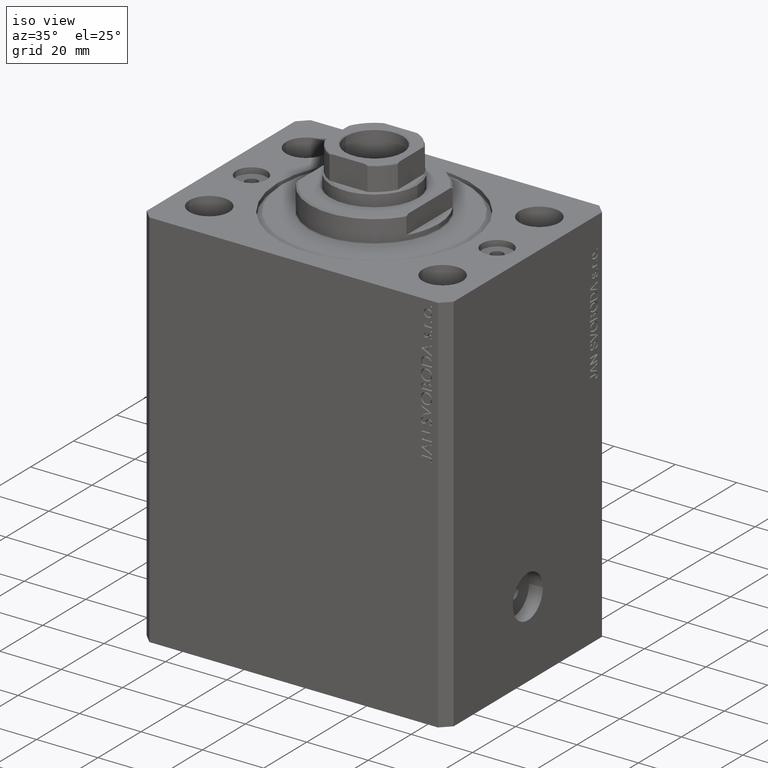
[diagram: clean part render]
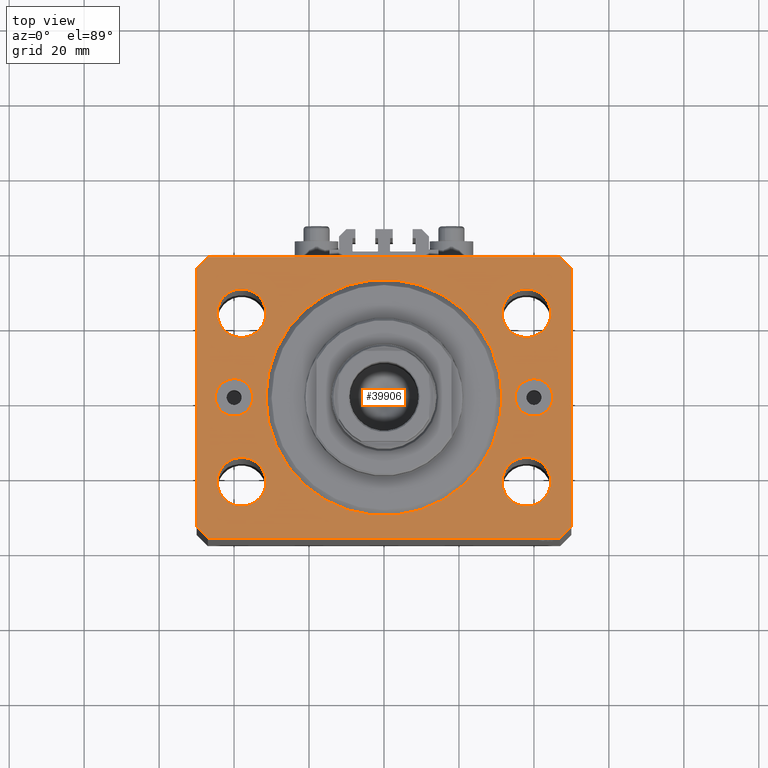
[diagram: tour spotlight — one face highlighted and labeled with its STEP entity id]
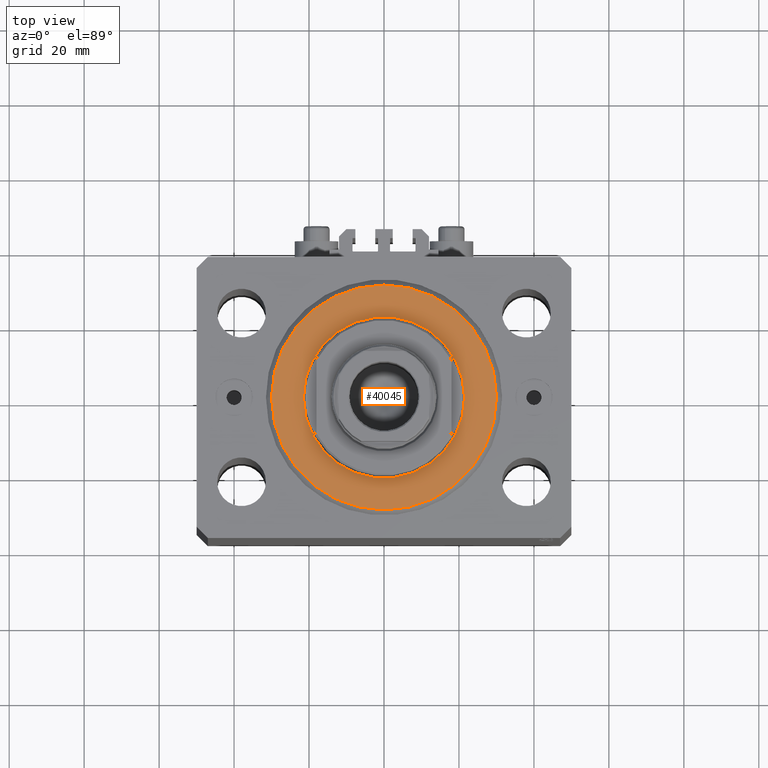
[diagram: tour spotlight — one face highlighted and labeled with its STEP entity id]
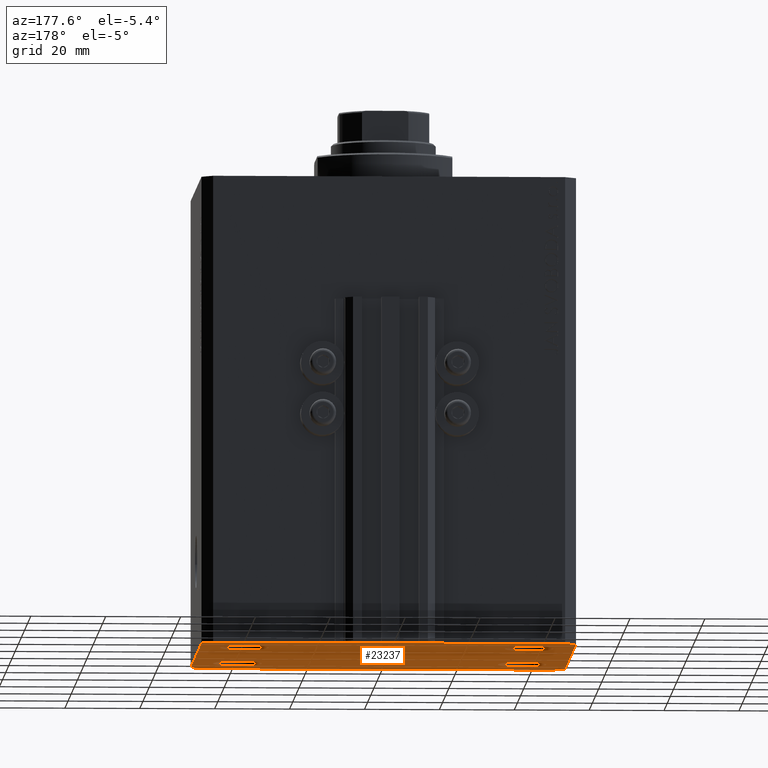
[diagram: tour spotlight — one face highlighted and labeled with its STEP entity id]
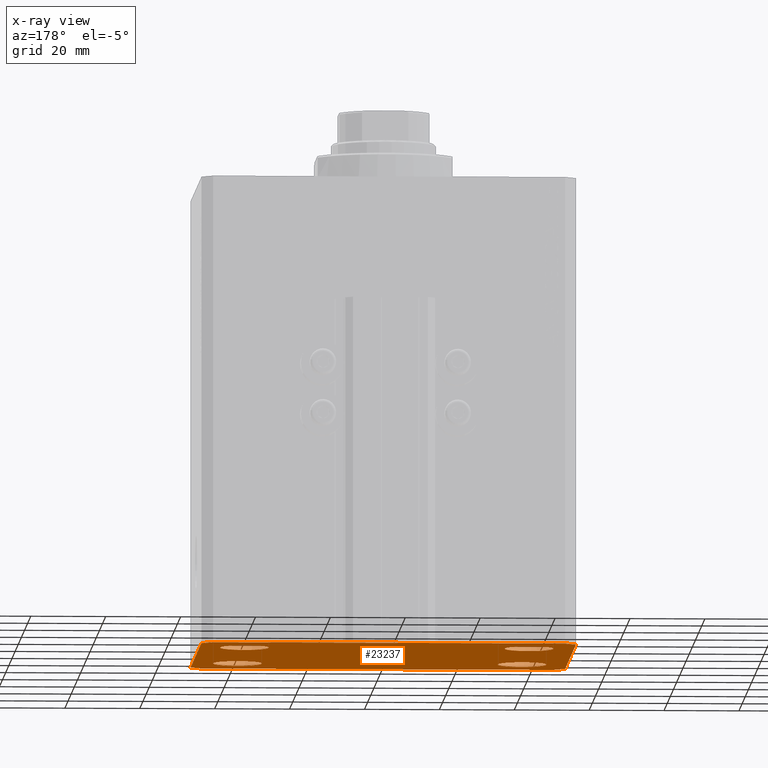
[diagram: x-ray of the same camera — body ghosted, this tour face saturated]
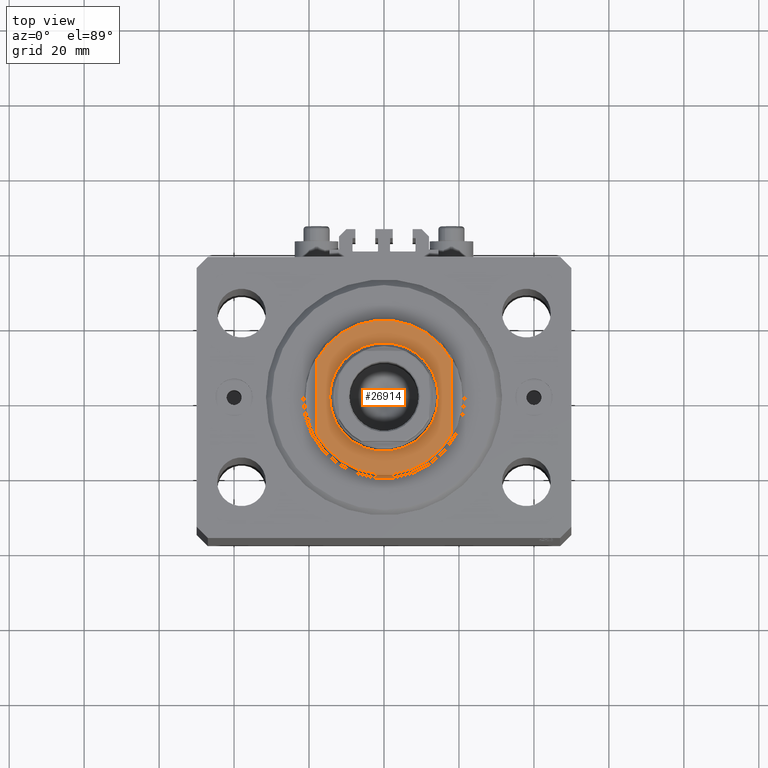
[diagram: tour spotlight — one face highlighted and labeled with its STEP entity id]
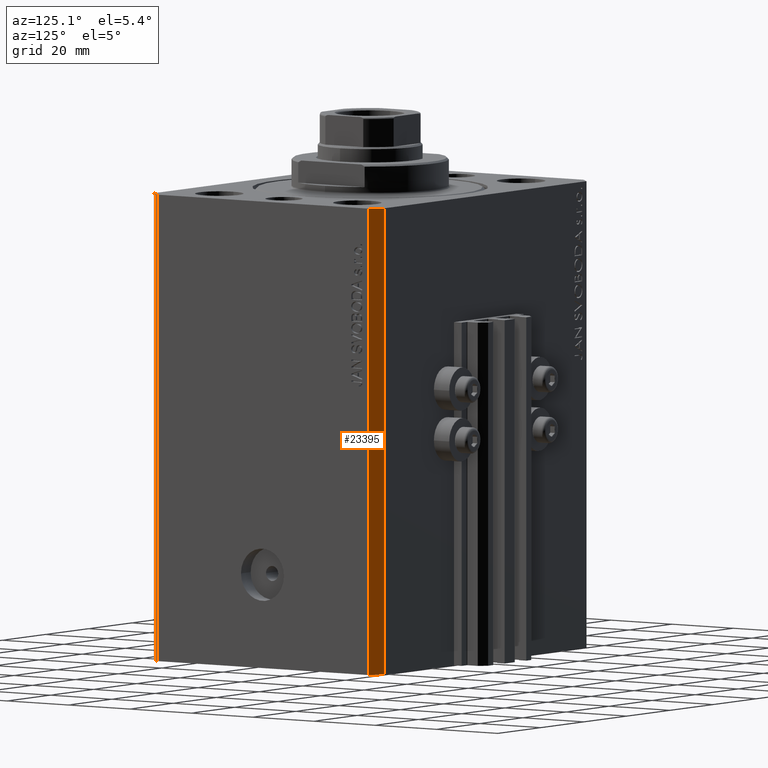
[diagram: tour spotlight — one face highlighted and labeled with its STEP entity id]
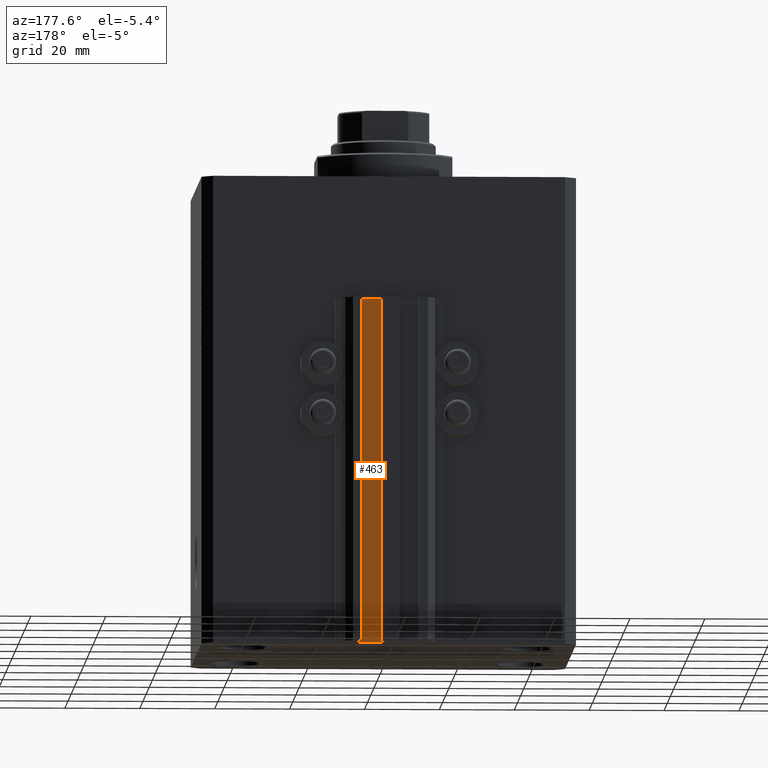
[diagram: tour spotlight — one face highlighted and labeled with its STEP entity id]
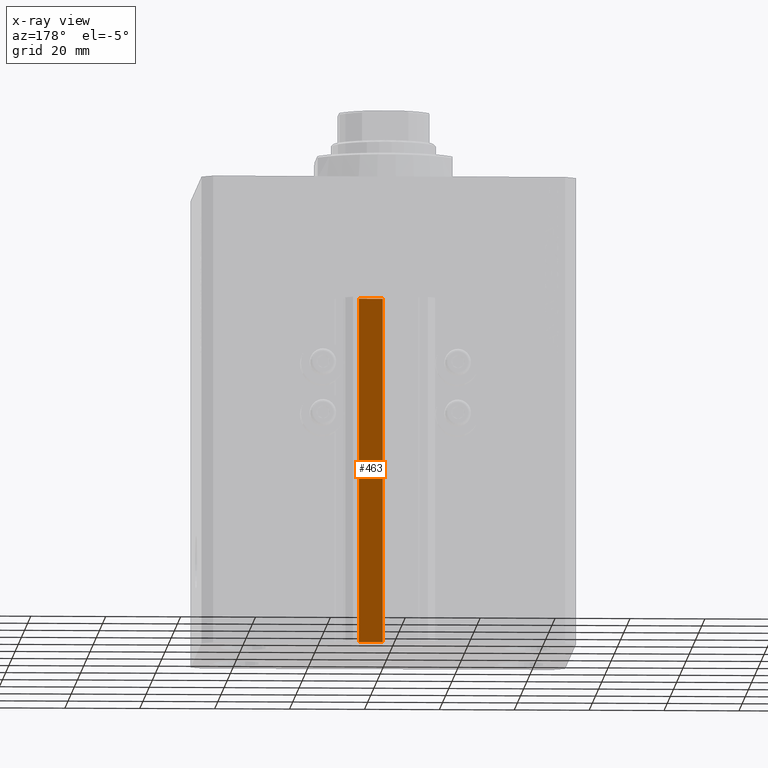
[diagram: x-ray of the same camera — body ghosted, this tour face saturated]
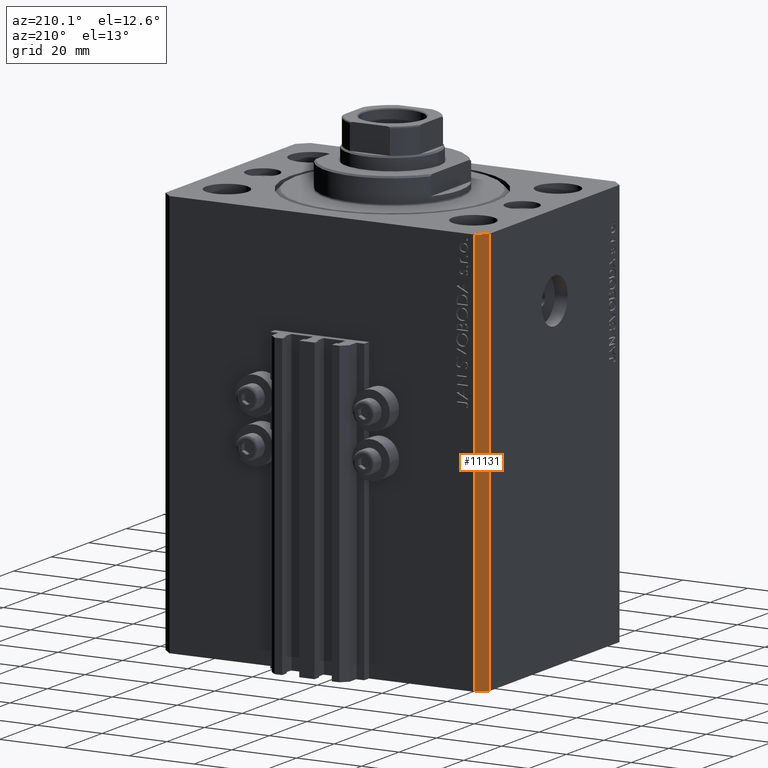
[diagram: tour spotlight — one face highlighted and labeled with its STEP entity id]
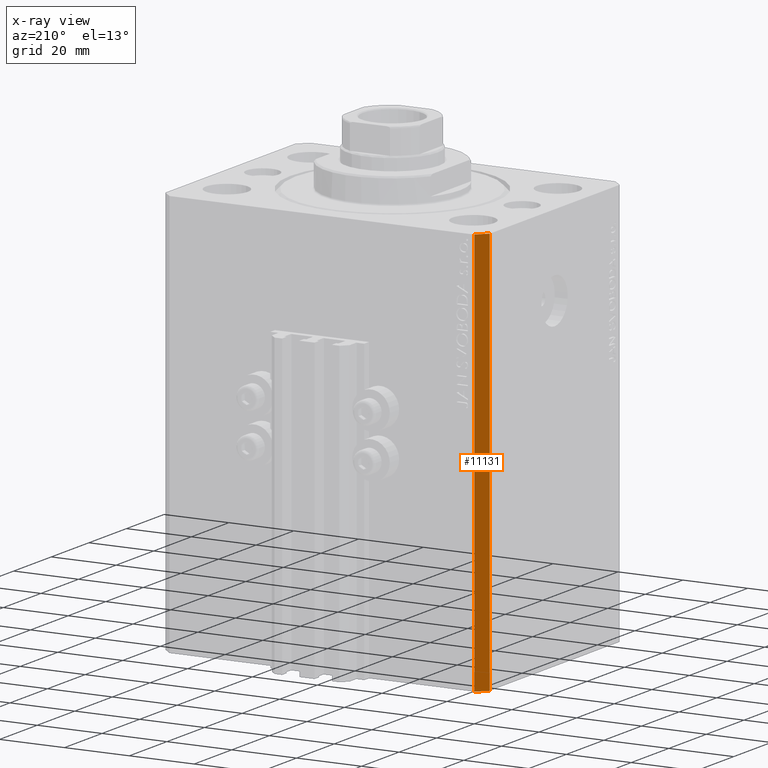
[diagram: x-ray of the same camera — body ghosted, this tour face saturated]
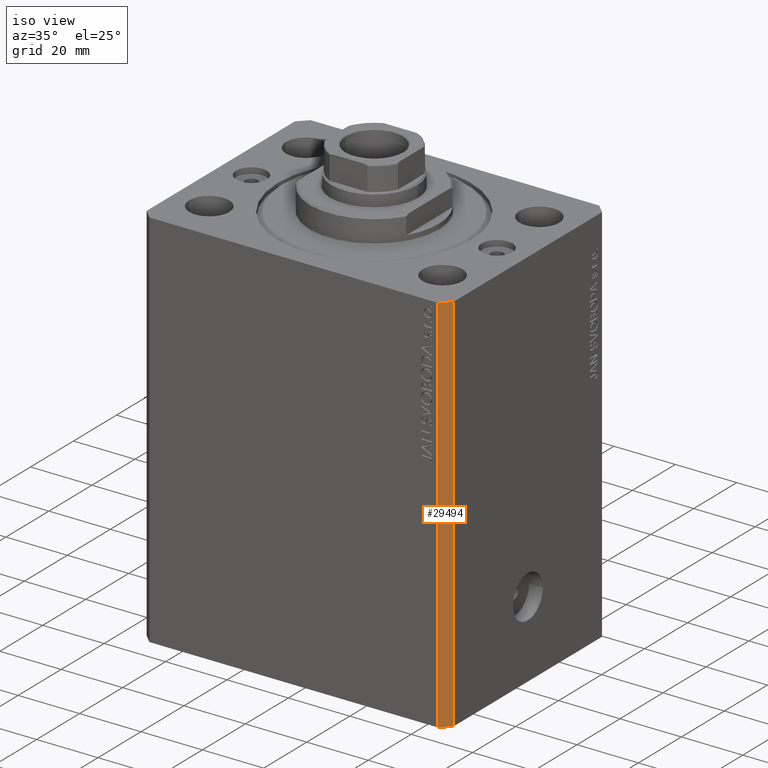
[diagram: tour spotlight — one face highlighted and labeled with its STEP entity id]
A machine part: a face-by-face anatomy tour. The part has 1034 B-rep faces; the first image is the clean iso view, then the 8 largest visible faces are spotlighted one at a time (largest first), each with its STEP entity span.

Face 1 — top view, entity #39906. In plain terms, the highlighted planar face has unit normal (0, 0, 1).
Definition (entity closure, byte-faithful):
#362 = ORIENTED_EDGE ( 'NONE', *, *, #13617, .F. ) ;
#481 = VECTOR ( 'NONE', #4098, 1000.000000000000000 ) ;
#605 = EDGE_LOOP ( 'NONE', ( #41032, #25439 ) ) ;
#611 = VECTOR ( 'NONE', #42566, 1000.000000000000000 ) ;
#858 = EDGE_CURVE ( 'NONE', #16469, #7818, #47188, .T. ) ;
#1107 = CARTESIAN_POINT ( 'NONE',  ( 44.49999999999999289, -22.50000000000000000, 0.000000000000000000 ) ) ;
#1406 = EDGE_CURVE ( 'NONE', #23242, #21050, #24308, .T. ) ;
#1459 = AXIS2_PLACEMENT_3D ( 'NONE', #36044, #21470, #3587 ) ;
#1460 = EDGE_CURVE ( 'NONE', #23691, #13603, #4282, .T. ) ;
#1546 = VERTEX_POINT ( 'NONE', #22395 ) ;
#1921 = CARTESIAN_POINT ( 'NONE',  ( -40.00000000000000000, 0.000000000000000000, 0.000000000000000000 ) ) ;
#2060 = CARTESIAN_POINT ( 'NONE',  ( -44.49999999999999289, -22.50000000000000000, 0.000000000000000000 ) ) ;
#2220 = DIRECTION ( 'NONE',  ( 1.000000000000000000, 0.000000000000000000, 0.000000000000000000 ) ) ;
#2340 = CARTESIAN_POINT ( 'NONE',  ( 40.00000000000000000, 0.000000000000000000, 0.000000000000000000 ) ) ;
#2392 = VERTEX_POINT ( 'NONE', #10526 ) ;
#2658 = DIRECTION ( 'NONE',  ( 1.000000000000000000, 0.000000000000000000, 0.000000000000000000 ) ) ;
#2751 = CARTESIAN_POINT ( 'NONE',  ( 0.000000000000000000, 0.000000000000000000, 0.000000000000000000 ) ) ;
#2815 = CARTESIAN_POINT ( 'NONE',  ( 50.00000000000051870, 34.49999999999995026, 0.000000000000000000 ) ) ;
#2828 = DIRECTION ( 'NONE',  ( 1.000000000000000000, 0.000000000000000000, 0.000000000000000000 ) ) ;
#2874 = CIRCLE ( 'NONE', #46318, 4.999999999999997335 ) ;
#2877 = AXIS2_PLACEMENT_3D ( 'NONE', #34317, #22853, #36947 ) ;
#3318 = DIRECTION ( 'NONE',  ( 1.000000000000000000, 0.000000000000000000, 0.000000000000000000 ) ) ;
#3486 = CIRCLE ( 'NONE', #42364, 6.499999999999999112 ) ;
#3587 = DIRECTION ( 'NONE',  ( 1.000000000000000000, 0.000000000000000000, 0.000000000000000000 ) ) ;
#4098 = DIRECTION ( 'NONE',  ( -0.7071067811865483499, -0.7071067811865466846, 0.000000000000000000 ) ) ;
#4155 = VERTEX_POINT ( 'NONE', #25186 ) ;
#4282 = LINE ( 'NONE', #7857, #21235 ) ;
#4474 = DIRECTION ( 'NONE',  ( 0.7071067811865491270, -0.7071067811865459074, 0.000000000000000000 ) ) ;
#5409 = DIRECTION ( 'NONE',  ( 1.000000000000000000, 0.000000000000000000, -0.000000000000000000 ) ) ;
#5638 = FACE_OUTER_BOUND ( 'NONE', #8207, .T. ) ;
#5877 = ORIENTED_EDGE ( 'NONE', *, *, #39190, .T. ) ;
#5878 = AXIS2_PLACEMENT_3D ( 'NONE', #24366, #17197, #2658 ) ;
#6571 = EDGE_LOOP ( 'NONE', ( #19992, #362 ) ) ;
#6684 = AXIS2_PLACEMENT_3D ( 'NONE', #2340, #9013, #20462 ) ;
#7023 = EDGE_LOOP ( 'NONE', ( #38868, #32378 ) ) ;
#7414 = VERTEX_POINT ( 'NONE', #8554 ) ;
#7422 = EDGE_LOOP ( 'NONE', ( #13464, #46991 ) ) ;
#7818 = VERTEX_POINT ( 'NONE', #1107 ) ;
#7857 = CARTESIAN_POINT ( 'NONE',  ( 50.00000000000000000, -34.50000000000000711, 0.000000000000000000 ) ) ;
#8045 = VERTEX_POINT ( 'NONE', #23994 ) ;
#8207 = EDGE_LOOP ( 'NONE', ( #32626, #5877, #40725, #25910, #9443, #19193, #28177, #36881 ) ) ;
#8339 = CARTESIAN_POINT ( 'NONE',  ( -37.99999999999999289, -22.50000000000000000, 0.000000000000000000 ) ) ;
#8554 = CARTESIAN_POINT ( 'NONE',  ( 35.00000000000000000, 6.123233995736762338E-16, 0.000000000000000000 ) ) ;
#9013 = DIRECTION ( 'NONE',  ( 0.000000000000000000, -0.000000000000000000, -1.000000000000000000 ) ) ;
#9079 = CARTESIAN_POINT ( 'NONE',  ( -35.00000000000000000, 0.000000000000000000, 0.000000000000000000 ) ) ;
#9141 = LINE ( 'NONE', #16530, #611 ) ;
#9443 = ORIENTED_EDGE ( 'NONE', *, *, #43771, .T. ) ;
#9515 = EDGE_CURVE ( 'NONE', #26102, #36928, #16740, .T. ) ;
#9839 = EDGE_CURVE ( 'NONE', #34678, #2392, #35209, .T. ) ;
#9951 = ORIENTED_EDGE ( 'NONE', *, *, #31839, .F. ) ;
#10025 = DIRECTION ( 'NONE',  ( 0.000000000000000000, 0.000000000000000000, 1.000000000000000000 ) ) ;
#10214 = LINE ( 'NONE', #2815, #15014 ) ;
#10526 = CARTESIAN_POINT ( 'NONE',  ( 31.50000000000000000, 0.000000000000000000, 0.000000000000000000 ) ) ;
#10632 = VERTEX_POINT ( 'NONE', #2060 ) ;
#11185 = AXIS2_PLACEMENT_3D ( 'NONE', #27115, #38102, #5409 ) ;
#11302 = CARTESIAN_POINT ( 'NONE',  ( -50.00000000000001421, 34.50000000000000000, 0.000000000000000000 ) ) ;
#11473 = DIRECTION ( 'NONE',  ( 0.000000000000000000, 0.000000000000000000, 1.000000000000000000 ) ) ;
#11637 = EDGE_CURVE ( 'NONE', #2392, #34678, #40633, .T. ) ;
#12554 = FACE_BOUND ( 'NONE', #605, .T. ) ;
#12720 = CARTESIAN_POINT ( 'NONE',  ( 47.00000000000000000, -37.50000000000000711, 0.000000000000000000 ) ) ;
#12752 = CIRCLE ( 'NONE', #46296, 6.499999999999999112 ) ;
#12829 = EDGE_CURVE ( 'NONE', #35146, #23691, #24249, .T. ) ;
#13261 = EDGE_LOOP ( 'NONE', ( #39164, #43363 ) ) ;
#13464 = ORIENTED_EDGE ( 'NONE', *, *, #28882, .F. ) ;
#13603 = VERTEX_POINT ( 'NONE', #46346 ) ;
#13617 = EDGE_CURVE ( 'NONE', #21050, #23242, #30847, .T. ) ;
#13879 = DIRECTION ( 'NONE',  ( 1.000000000000000000, 0.000000000000000000, 0.000000000000000000 ) ) ;
#14628 = AXIS2_PLACEMENT_3D ( 'NONE', #2751, #23986, #17767 ) ;
#15014 = VECTOR ( 'NONE', #21171, 1000.000000000000114 ) ;
#15130 = CIRCLE ( 'NONE', #15871, 6.499999999999999112 ) ;
#15871 = AXIS2_PLACEMENT_3D ( 'NONE', #20097, #20575, #2220 ) ;
#15922 = EDGE_CURVE ( 'NONE', #8045, #4155, #22579, .T. ) ;
#16006 = LINE ( 'NONE', #37727, #481 ) ;
#16469 = VERTEX_POINT ( 'NONE', #31253 ) ;
#16530 = CARTESIAN_POINT ( 'NONE',  ( -47.00000000000000000, -37.49999999999999289, 0.000000000000000000 ) ) ;
#16605 = PLANE ( 'NONE',  #11185 ) ;
#16673 = CARTESIAN_POINT ( 'NONE',  ( 0.000000000000000000, 0.000000000000000000, 0.000000000000000000 ) ) ;
#16707 = DIRECTION ( 'NONE',  ( 1.000000000000000000, 0.000000000000000000, 0.000000000000000000 ) ) ;
#16740 = LINE ( 'NONE', #28200, #45130 ) ;
#17197 = DIRECTION ( 'NONE',  ( 0.000000000000000000, 0.000000000000000000, 1.000000000000000000 ) ) ;
#17767 = DIRECTION ( 'NONE',  ( 1.000000000000000000, 0.000000000000000000, 0.000000000000000000 ) ) ;
#18436 = DIRECTION ( 'NONE',  ( 2.011273595335428326E-16, -1.000000000000000000, 0.000000000000000000 ) ) ;
#18723 = VERTEX_POINT ( 'NONE', #23402 ) ;
#19193 = ORIENTED_EDGE ( 'NONE', *, *, #12829, .T. ) ;
#19305 = DIRECTION ( 'NONE',  ( 1.000000000000000000, 0.000000000000000000, 0.000000000000000000 ) ) ;
#19567 = CARTESIAN_POINT ( 'NONE',  ( -44.50000000000000000, 22.49999999999999645, 0.000000000000000000 ) ) ;
#19992 = ORIENTED_EDGE ( 'NONE', *, *, #1406, .F. ) ;
#20097 = CARTESIAN_POINT ( 'NONE',  ( 37.99999999999999289, -22.50000000000000000, 0.000000000000000000 ) ) ;
#20148 = VECTOR ( 'NONE', #4474, 1000.000000000000114 ) ;
#20196 = CARTESIAN_POINT ( 'NONE',  ( 31.50000000000000000, 22.49999999999998934, 0.000000000000000000 ) ) ;
#20462 = DIRECTION ( 'NONE',  ( 1.000000000000000000, 0.000000000000000000, 0.000000000000000000 ) ) ;
#20489 = AXIS2_PLACEMENT_3D ( 'NONE', #44765, #23016, #33773 ) ;
#20575 = DIRECTION ( 'NONE',  ( 0.000000000000000000, 0.000000000000000000, 1.000000000000000000 ) ) ;
#20662 = EDGE_CURVE ( 'NONE', #28082, #8045, #47121, .T. ) ;
#21050 = VERTEX_POINT ( 'NONE', #19567 ) ;
#21162 = CARTESIAN_POINT ( 'NONE',  ( -31.50000000000000000, 3.857637417314162689E-15, 0.000000000000000000 ) ) ;
#21171 = DIRECTION ( 'NONE',  ( -0.7071067811865361374, 0.7071067811865588970, 0.000000000000000000 ) ) ;
#21201 = DIRECTION ( 'NONE',  ( 0.000000000000000000, -0.000000000000000000, -1.000000000000000000 ) ) ;
#21235 = VECTOR ( 'NONE', #36967, 1000.000000000000000 ) ;
#21259 = DIRECTION ( 'NONE',  ( 0.000000000000000000, 0.000000000000000000, 1.000000000000000000 ) ) ;
#21470 = DIRECTION ( 'NONE',  ( 0.000000000000000000, 0.000000000000000000, 1.000000000000000000 ) ) ;
#21724 = CARTESIAN_POINT ( 'NONE',  ( 38.00000000000000000, 22.49999999999998934, 0.000000000000000000 ) ) ;
#22395 = CARTESIAN_POINT ( 'NONE',  ( -45.00000000000000000, 6.123233995736762338E-16, 0.000000000000000000 ) ) ;
#22579 = LINE ( 'NONE', #37156, #20148 ) ;
#22714 = ORIENTED_EDGE ( 'NONE', *, *, #42399, .T. ) ;
#22853 = DIRECTION ( 'NONE',  ( 0.000000000000000000, 0.000000000000000000, 1.000000000000000000 ) ) ;
#23016 = DIRECTION ( 'NONE',  ( 0.000000000000000000, 0.000000000000000000, 1.000000000000000000 ) ) ;
#23242 = VERTEX_POINT ( 'NONE', #35981 ) ;
#23402 = CARTESIAN_POINT ( 'NONE',  ( 45.00000000000000000, 0.000000000000000000, 0.000000000000000000 ) ) ;
#23667 = DIRECTION ( 'NONE',  ( 0.000000000000000000, 0.000000000000000000, 1.000000000000000000 ) ) ;
#23691 = VERTEX_POINT ( 'NONE', #31203 ) ;
#23897 = DIRECTION ( 'NONE',  ( 1.000000000000000000, 0.000000000000000000, 0.000000000000000000 ) ) ;
#23986 = DIRECTION ( 'NONE',  ( 0.000000000000000000, 0.000000000000000000, 1.000000000000000000 ) ) ;
#23994 = CARTESIAN_POINT ( 'NONE',  ( -50.00000000000000000, -34.50000000000000000, 0.000000000000000000 ) ) ;
#24134 = CARTESIAN_POINT ( 'NONE',  ( -38.00000000000000000, 22.49999999999999645, 0.000000000000000000 ) ) ;
#24241 = EDGE_CURVE ( 'NONE', #34300, #1546, #43281, .T. ) ;
#24249 = LINE ( 'NONE', #46695, #35315 ) ;
#24308 = CIRCLE ( 'NONE', #1459, 6.499999999999999112 ) ;
#24366 = CARTESIAN_POINT ( 'NONE',  ( -37.99999999999999289, -22.50000000000000000, 0.000000000000000000 ) ) ;
#24401 = CARTESIAN_POINT ( 'NONE',  ( 47.00000000000056843, 37.49999999999999289, 0.000000000000000000 ) ) ;
#24682 = CARTESIAN_POINT ( 'NONE',  ( -50.00000000000001421, 34.50000000000000000, 0.000000000000000000 ) ) ;
#25186 = CARTESIAN_POINT ( 'NONE',  ( -47.00000000000000000, -37.49999999999999289, 0.000000000000000000 ) ) ;
#25439 = ORIENTED_EDGE ( 'NONE', *, *, #45453, .F. ) ;
#25910 = ORIENTED_EDGE ( 'NONE', *, *, #15922, .T. ) ;
#26102 = VERTEX_POINT ( 'NONE', #24401 ) ;
#26173 = EDGE_LOOP ( 'NONE', ( #22714, #42679 ) ) ;
#27115 = CARTESIAN_POINT ( 'NONE',  ( 0.000000000000000000, 0.000000000000000000, 0.000000000000000000 ) ) ;
#27722 = DIRECTION ( 'NONE',  ( -1.000000000000000000, 7.381802025433175941E-17, 0.000000000000000000 ) ) ;
#28053 = CARTESIAN_POINT ( 'NONE',  ( -31.49999999999999289, -22.50000000000000000, 0.000000000000000000 ) ) ;
#28082 = VERTEX_POINT ( 'NONE', #24682 ) ;
#28177 = ORIENTED_EDGE ( 'NONE', *, *, #1460, .T. ) ;
#28200 = CARTESIAN_POINT ( 'NONE',  ( 47.00000000000056843, 37.49999999999999289, 0.000000000000000000 ) ) ;
#28614 = CARTESIAN_POINT ( 'NONE',  ( 40.00000000000000000, 0.000000000000000000, 0.000000000000000000 ) ) ;
#28882 = EDGE_CURVE ( 'NONE', #34969, #10632, #29510, .T. ) ;
#29090 = EDGE_CURVE ( 'NONE', #10632, #34969, #12752, .T. ) ;
#29510 = CIRCLE ( 'NONE', #5878, 6.499999999999999112 ) ;
#30274 = CIRCLE ( 'NONE', #2877, 6.499999999999999112 ) ;
#30452 = FACE_BOUND ( 'NONE', #26173, .T. ) ;
#30847 = CIRCLE ( 'NONE', #34669, 6.499999999999999112 ) ;
#30932 = FACE_BOUND ( 'NONE', #13261, .T. ) ;
#30956 = VECTOR ( 'NONE', #18436, 1000.000000000000000 ) ;
#31203 = CARTESIAN_POINT ( 'NONE',  ( 50.00000000000000000, -34.50000000000000711, 0.000000000000000000 ) ) ;
#31253 = CARTESIAN_POINT ( 'NONE',  ( 31.49999999999999289, -22.50000000000000000, 0.000000000000000000 ) ) ;
#31405 = FACE_BOUND ( 'NONE', #7422, .T. ) ;
#31839 = EDGE_CURVE ( 'NONE', #7818, #16469, #15130, .T. ) ;
#32070 = CARTESIAN_POINT ( 'NONE',  ( -47.00000000000001421, 37.50000000000000000, 0.000000000000000000 ) ) ;
#32142 = ORIENTED_EDGE ( 'NONE', *, *, #858, .F. ) ;
#32378 = ORIENTED_EDGE ( 'NONE', *, *, #9839, .F. ) ;
#32626 = ORIENTED_EDGE ( 'NONE', *, *, #9515, .T. ) ;
#33773 = DIRECTION ( 'NONE',  ( 1.000000000000000000, 0.000000000000000000, 0.000000000000000000 ) ) ;
#34300 = VERTEX_POINT ( 'NONE', #9079 ) ;
#34317 = CARTESIAN_POINT ( 'NONE',  ( 38.00000000000000000, 22.49999999999998934, 0.000000000000000000 ) ) ;
#34669 = AXIS2_PLACEMENT_3D ( 'NONE', #24134, #23667, #23897 ) ;
#34678 = VERTEX_POINT ( 'NONE', #21162 ) ;
#34747 = FACE_BOUND ( 'NONE', #6571, .T. ) ;
#34969 = VERTEX_POINT ( 'NONE', #28053 ) ;
#35146 = VERTEX_POINT ( 'NONE', #12720 ) ;
#35209 = CIRCLE ( 'NONE', #14628, 31.50000000000000000 ) ;
#35315 = VECTOR ( 'NONE', #38824, 1000.000000000000000 ) ;
#35981 = CARTESIAN_POINT ( 'NONE',  ( -31.50000000000000000, 22.49999999999999645, 0.000000000000000000 ) ) ;
#36044 = CARTESIAN_POINT ( 'NONE',  ( -38.00000000000000000, 22.49999999999999645, 0.000000000000000000 ) ) ;
#36062 = CARTESIAN_POINT ( 'NONE',  ( -40.00000000000000000, 0.000000000000000000, 0.000000000000000000 ) ) ;
#36881 = ORIENTED_EDGE ( 'NONE', *, *, #44031, .T. ) ;
#36928 = VERTEX_POINT ( 'NONE', #32070 ) ;
#36947 = DIRECTION ( 'NONE',  ( 1.000000000000000000, 0.000000000000000000, 0.000000000000000000 ) ) ;
#36967 = DIRECTION ( 'NONE',  ( 7.441712302741091634E-15, 1.000000000000000000, 0.000000000000000000 ) ) ;
#37156 = CARTESIAN_POINT ( 'NONE',  ( -50.00000000000000000, -34.50000000000000000, 0.000000000000000000 ) ) ;
#37727 = CARTESIAN_POINT ( 'NONE',  ( -47.00000000000001421, 37.50000000000000000, 0.000000000000000000 ) ) ;
#37880 = VERTEX_POINT ( 'NONE', #20196 ) ;
#38102 = DIRECTION ( 'NONE',  ( 0.000000000000000000, 0.000000000000000000, 1.000000000000000000 ) ) ;
#38446 = VERTEX_POINT ( 'NONE', #39665 ) ;
#38468 = EDGE_CURVE ( 'NONE', #38446, #37880, #3486, .T. ) ;
#38824 = DIRECTION ( 'NONE',  ( 0.7071067811865483499, 0.7071067811865466846, 0.000000000000000000 ) ) ;
#38868 = ORIENTED_EDGE ( 'NONE', *, *, #11637, .F. ) ;
#39164 = ORIENTED_EDGE ( 'NONE', *, *, #38468, .F. ) ;
#39190 = EDGE_CURVE ( 'NONE', #36928, #28082, #16006, .T. ) ;
#39665 = CARTESIAN_POINT ( 'NONE',  ( 44.50000000000000000, 22.49999999999998934, 0.000000000000000000 ) ) ;
#39891 = DIRECTION ( 'NONE',  ( 1.000000000000000000, 0.000000000000000000, 0.000000000000000000 ) ) ;
#39906 = ADVANCED_FACE ( 'NONE', ( #5638, #34747, #30932, #41681, #31405, #45260, #12554, #30452 ), #16605, .T. ) ;
#40208 = AXIS2_PLACEMENT_3D ( 'NONE', #28614, #21201, #3318 ) ;
#40633 = CIRCLE ( 'NONE', #45987, 31.50000000000000000 ) ;
#40725 = ORIENTED_EDGE ( 'NONE', *, *, #20662, .T. ) ;
#40963 = CIRCLE ( 'NONE', #40208, 4.999999999999997335 ) ;
#41032 = ORIENTED_EDGE ( 'NONE', *, *, #24241, .F. ) ;
#41681 = FACE_BOUND ( 'NONE', #44522, .T. ) ;
#41743 = CIRCLE ( 'NONE', #6684, 4.999999999999997335 ) ;
#41769 = AXIS2_PLACEMENT_3D ( 'NONE', #1921, #10025, #16707 ) ;
#42251 = EDGE_CURVE ( 'NONE', #37880, #38446, #30274, .T. ) ;
#42364 = AXIS2_PLACEMENT_3D ( 'NONE', #21724, #11473, #39891 ) ;
#42399 = EDGE_CURVE ( 'NONE', #18723, #7414, #41743, .T. ) ;
#42566 = DIRECTION ( 'NONE',  ( 1.000000000000000000, -1.476360405086644309E-16, 0.000000000000000000 ) ) ;
#42679 = ORIENTED_EDGE ( 'NONE', *, *, #46021, .T. ) ;
#43281 = CIRCLE ( 'NONE', #41769, 4.999999999999997335 ) ;
#43363 = ORIENTED_EDGE ( 'NONE', *, *, #42251, .F. ) ;
#43771 = EDGE_CURVE ( 'NONE', #4155, #35146, #9141, .T. ) ;
#44031 = EDGE_CURVE ( 'NONE', #13603, #26102, #10214, .T. ) ;
#44522 = EDGE_LOOP ( 'NONE', ( #9951, #32142 ) ) ;
#44765 = CARTESIAN_POINT ( 'NONE',  ( 37.99999999999999289, -22.50000000000000000, 0.000000000000000000 ) ) ;
#44868 = DIRECTION ( 'NONE',  ( 0.000000000000000000, 0.000000000000000000, 1.000000000000000000 ) ) ;
#45130 = VECTOR ( 'NONE', #27722, 1000.000000000000000 ) ;
#45260 = FACE_BOUND ( 'NONE', #7023, .T. ) ;
#45453 = EDGE_CURVE ( 'NONE', #1546, #34300, #2874, .T. ) ;
#45808 = DIRECTION ( 'NONE',  ( 0.000000000000000000, 0.000000000000000000, 1.000000000000000000 ) ) ;
#45987 = AXIS2_PLACEMENT_3D ( 'NONE', #16673, #45808, #2828 ) ;
#46021 = EDGE_CURVE ( 'NONE', #7414, #18723, #40963, .T. ) ;
#46296 = AXIS2_PLACEMENT_3D ( 'NONE', #8339, #44868, #19305 ) ;
#46318 = AXIS2_PLACEMENT_3D ( 'NONE', #36062, #21259, #13879 ) ;
#46346 = CARTESIAN_POINT ( 'NONE',  ( 50.00000000000051870, 34.49999999999995026, 0.000000000000000000 ) ) ;
#46695 = CARTESIAN_POINT ( 'NONE',  ( 47.00000000000000000, -37.50000000000000711, 0.000000000000000000 ) ) ;
#46991 = ORIENTED_EDGE ( 'NONE', *, *, #29090, .F. ) ;
#47121 = LINE ( 'NONE', #11302, #30956 ) ;
#47188 = CIRCLE ( 'NONE', #20489, 6.499999999999999112 ) ;

Face 2 — top view, entity #40045. In plain terms, the highlighted planar face has unit normal (0, 0, -1).
Definition (entity closure, byte-faithful):
#354 = CARTESIAN_POINT ( 'NONE',  ( 0.000000000000000000, 0.000000000000000000, 0.000000000000000000 ) ) ;
#3012 = DIRECTION ( 'NONE',  ( 0.000000000000000000, 0.000000000000000000, 1.000000000000000000 ) ) ;
#6573 = PLANE ( 'NONE',  #40889 ) ;
#7903 = ORIENTED_EDGE ( 'NONE', *, *, #42972, .T. ) ;
#8675 = EDGE_LOOP ( 'NONE', ( #46772, #12670 ) ) ;
#12670 = ORIENTED_EDGE ( 'NONE', *, *, #41888, .T. ) ;
#13470 = EDGE_CURVE ( 'NONE', #30839, #26678, #36219, .T. ) ;
#14903 = DIRECTION ( 'NONE',  ( -0.000000000000000000, -0.000000000000000000, -1.000000000000000000 ) ) ;
#14975 = CARTESIAN_POINT ( 'NONE',  ( -29.99999999999999289, 3.765788907378110539E-15, 0.000000000000000000 ) ) ;
#18139 = DIRECTION ( 'NONE',  ( 1.000000000000000000, 0.000000000000000000, 0.000000000000000000 ) ) ;
#18890 = CARTESIAN_POINT ( 'NONE',  ( 0.000000000000000000, 0.000000000000000000, 0.000000000000000000 ) ) ;
#21118 = CARTESIAN_POINT ( 'NONE',  ( 0.000000000000000000, 0.000000000000000000, 0.000000000000000000 ) ) ;
#23385 = CIRCLE ( 'NONE', #30241, 29.99999999999999289 ) ;
#24973 = AXIS2_PLACEMENT_3D ( 'NONE', #40111, #43704, #18139 ) ;
#25010 = AXIS2_PLACEMENT_3D ( 'NONE', #42032, #31279, #27699 ) ;
#26678 = VERTEX_POINT ( 'NONE', #38901 ) ;
#27699 = DIRECTION ( 'NONE',  ( 1.000000000000000000, 0.000000000000000000, 0.000000000000000000 ) ) ;
#28769 = FACE_BOUND ( 'NONE', #8675, .T. ) ;
#30241 = AXIS2_PLACEMENT_3D ( 'NONE', #354, #14903, #44050 ) ;
#30246 = CARTESIAN_POINT ( 'NONE',  ( 21.50000000000000000, 0.000000000000000000, -2.168404344971008868E-16 ) ) ;
#30839 = VERTEX_POINT ( 'NONE', #30246 ) ;
#31279 = DIRECTION ( 'NONE',  ( -0.000000000000000000, -0.000000000000000000, -1.000000000000000000 ) ) ;
#33466 = DIRECTION ( 'NONE',  ( 0.000000000000000000, 0.000000000000000000, 1.000000000000000000 ) ) ;
#33813 = AXIS2_PLACEMENT_3D ( 'NONE', #18890, #33466, #34179 ) ;
#34179 = DIRECTION ( 'NONE',  ( 1.000000000000000000, 0.000000000000000000, 0.000000000000000000 ) ) ;
#36219 = CIRCLE ( 'NONE', #33813, 21.50000000000000000 ) ;
#37812 = VERTEX_POINT ( 'NONE', #14975 ) ;
#38901 = CARTESIAN_POINT ( 'NONE',  ( -21.50000000000000000, 2.632990618166809630E-15, -2.168404344971008868E-16 ) ) ;
#39261 = VERTEX_POINT ( 'NONE', #42039 ) ;
#39279 = FACE_OUTER_BOUND ( 'NONE', #40198, .T. ) ;
#40045 = ADVANCED_FACE ( 'NONE', ( #28769, #39279 ), #6573, .F. ) ;
#40111 = CARTESIAN_POINT ( 'NONE',  ( 0.000000000000000000, 0.000000000000000000, 0.000000000000000000 ) ) ;
#40198 = EDGE_LOOP ( 'NONE', ( #7903, #41974 ) ) ;
#40889 = AXIS2_PLACEMENT_3D ( 'NONE', #21118, #3012, #46688 ) ;
#41180 = EDGE_CURVE ( 'NONE', #37812, #39261, #23385, .T. ) ;
#41671 = CIRCLE ( 'NONE', #25010, 29.99999999999999289 ) ;
#41888 = EDGE_CURVE ( 'NONE', #26678, #30839, #43300, .T. ) ;
#41974 = ORIENTED_EDGE ( 'NONE', *, *, #41180, .T. ) ;
#42032 = CARTESIAN_POINT ( 'NONE',  ( 0.000000000000000000, 0.000000000000000000, 0.000000000000000000 ) ) ;
#42039 = CARTESIAN_POINT ( 'NONE',  ( 29.99999999999999289, 0.000000000000000000, 0.000000000000000000 ) ) ;
#42972 = EDGE_CURVE ( 'NONE', #39261, #37812, #41671, .T. ) ;
#43300 = CIRCLE ( 'NONE', #24973, 21.50000000000000000 ) ;
#43704 = DIRECTION ( 'NONE',  ( 0.000000000000000000, 0.000000000000000000, 1.000000000000000000 ) ) ;
#44050 = DIRECTION ( 'NONE',  ( 1.000000000000000000, 0.000000000000000000, 0.000000000000000000 ) ) ;
#46688 = DIRECTION ( 'NONE',  ( 1.000000000000000000, 0.000000000000000000, -0.000000000000000000 ) ) ;
#46772 = ORIENTED_EDGE ( 'NONE', *, *, #13470, .T. ) ;

Face 3 — auxiliary view, entity #23237. An x-ray twin of the same camera follows (body ghosted, this face saturated) — the face is partly hidden behind the body. In plain terms, the highlighted planar face has unit normal (0, 0, 1).
Definition (entity closure, byte-faithful):
#16 = EDGE_LOOP ( 'NONE', ( #42752, #22311 ) ) ;
#987 = VERTEX_POINT ( 'NONE', #33693 ) ;
#1147 = LINE ( 'NONE', #40780, #19618 ) ;
#1295 = CIRCLE ( 'NONE', #13498, 6.499999999999999112 ) ;
#2118 = CARTESIAN_POINT ( 'NONE',  ( -50.00000000000000000, -34.50000000000000000, -125.0000000000000000 ) ) ;
#2527 = EDGE_CURVE ( 'NONE', #30438, #21966, #27182, .T. ) ;
#2732 = EDGE_CURVE ( 'NONE', #37300, #37855, #35764, .T. ) ;
#2833 = EDGE_CURVE ( 'NONE', #14551, #36032, #19960, .T. ) ;
#2866 = AXIS2_PLACEMENT_3D ( 'NONE', #32639, #14264, #14502 ) ;
#4397 = VERTEX_POINT ( 'NONE', #41161 ) ;
#4688 = LINE ( 'NONE', #15877, #11301 ) ;
#4749 = CARTESIAN_POINT ( 'NONE',  ( 50.00000000000051870, 34.49999999999995026, -125.0000000000000000 ) ) ;
#5474 = EDGE_CURVE ( 'NONE', #14190, #10041, #40467, .T. ) ;
#5859 = DIRECTION ( 'NONE',  ( -1.000000000000000000, 7.381802025433175941E-17, 0.000000000000000000 ) ) ;
#5962 = VECTOR ( 'NONE', #5859, 1000.000000000000000 ) ;
#6115 = ORIENTED_EDGE ( 'NONE', *, *, #13027, .F. ) ;
#6645 = DIRECTION ( 'NONE',  ( 0.7071067811865483499, 0.7071067811865466846, 0.000000000000000000 ) ) ;
#6675 = EDGE_CURVE ( 'NONE', #4397, #39675, #19054, .T. ) ;
#7388 = VERTEX_POINT ( 'NONE', #2118 ) ;
#8065 = DIRECTION ( 'NONE',  ( 2.011273595335428326E-16, -1.000000000000000000, 0.000000000000000000 ) ) ;
#8544 = DIRECTION ( 'NONE',  ( -0.000000000000000000, -0.000000000000000000, -1.000000000000000000 ) ) ;
#9494 = CARTESIAN_POINT ( 'NONE',  ( 47.00000000000056843, 37.49999999999999289, -125.0000000000000000 ) ) ;
#10041 = VERTEX_POINT ( 'NONE', #19880 ) ;
#10646 = CARTESIAN_POINT ( 'NONE',  ( 50.00000000000000000, -34.50000000000000711, -125.0000000000000000 ) ) ;
#10703 = DIRECTION ( 'NONE',  ( 1.000000000000000000, 0.000000000000000000, 0.000000000000000000 ) ) ;
#10727 = EDGE_CURVE ( 'NONE', #37855, #37300, #13166, .T. ) ;
#10995 = CARTESIAN_POINT ( 'NONE',  ( 31.50000000000000000, 22.49999999999998934, -125.0000000000000000 ) ) ;
#11301 = VECTOR ( 'NONE', #29967, 1000.000000000000114 ) ;
#11719 = EDGE_CURVE ( 'NONE', #10041, #14190, #15468, .T. ) ;
#12785 = CARTESIAN_POINT ( 'NONE',  ( 47.00000000000056843, 37.49999999999999289, -125.0000000000000000 ) ) ;
#12858 = AXIS2_PLACEMENT_3D ( 'NONE', #30254, #8544, #19512 ) ;
#13027 = EDGE_CURVE ( 'NONE', #15416, #4397, #36168, .T. ) ;
#13166 = CIRCLE ( 'NONE', #40602, 6.499999999999999112 ) ;
#13351 = CARTESIAN_POINT ( 'NONE',  ( -47.00000000000000000, -37.49999999999999289, -125.0000000000000000 ) ) ;
#13498 = AXIS2_PLACEMENT_3D ( 'NONE', #16259, #19847, #37512 ) ;
#13800 = FACE_BOUND ( 'NONE', #16086, .T. ) ;
#14080 = CARTESIAN_POINT ( 'NONE',  ( 37.99999999999999289, -22.50000000000000000, -125.0000000000000000 ) ) ;
#14190 = VERTEX_POINT ( 'NONE', #17967 ) ;
#14217 = DIRECTION ( 'NONE',  ( 7.441712302741091634E-15, 1.000000000000000000, 0.000000000000000000 ) ) ;
#14264 = DIRECTION ( 'NONE',  ( 0.000000000000000000, 0.000000000000000000, 1.000000000000000000 ) ) ;
#14441 = DIRECTION ( 'NONE',  ( 1.000000000000000000, 0.000000000000000000, 0.000000000000000000 ) ) ;
#14502 = DIRECTION ( 'NONE',  ( 1.000000000000000000, 0.000000000000000000, -0.000000000000000000 ) ) ;
#14551 = VERTEX_POINT ( 'NONE', #13351 ) ;
#15360 = DIRECTION ( 'NONE',  ( -0.000000000000000000, -0.000000000000000000, -1.000000000000000000 ) ) ;
#15416 = VERTEX_POINT ( 'NONE', #28655 ) ;
#15468 = CIRCLE ( 'NONE', #42165, 6.499999999999999112 ) ;
#15610 = ORIENTED_EDGE ( 'NONE', *, *, #2527, .F. ) ;
#15757 = DIRECTION ( 'NONE',  ( 1.000000000000000000, 0.000000000000000000, 0.000000000000000000 ) ) ;
#15877 = CARTESIAN_POINT ( 'NONE',  ( -50.00000000000000000, -34.50000000000000000, -125.0000000000000000 ) ) ;
#16086 = EDGE_LOOP ( 'NONE', ( #26646, #35259 ) ) ;
#16113 = LINE ( 'NONE', #12785, #5962 ) ;
#16259 = CARTESIAN_POINT ( 'NONE',  ( -37.99999999999999289, -22.50000000000000000, -125.0000000000000000 ) ) ;
#16873 = VERTEX_POINT ( 'NONE', #40942 ) ;
#17444 = CIRCLE ( 'NONE', #12858, 6.499999999999999112 ) ;
#17967 = CARTESIAN_POINT ( 'NONE',  ( -44.50000000000000000, 22.49999999999999645, -125.0000000000000000 ) ) ;
#18073 = DIRECTION ( 'NONE',  ( -0.000000000000000000, -0.000000000000000000, -1.000000000000000000 ) ) ;
#18079 = LINE ( 'NONE', #28841, #21861 ) ;
#18291 = FACE_BOUND ( 'NONE', #16, .T. ) ;
#19054 = LINE ( 'NONE', #4749, #34390 ) ;
#19331 = CARTESIAN_POINT ( 'NONE',  ( 37.99999999999999289, -22.50000000000000000, -125.0000000000000000 ) ) ;
#19402 = VERTEX_POINT ( 'NONE', #44800 ) ;
#19512 = DIRECTION ( 'NONE',  ( 1.000000000000000000, 0.000000000000000000, 0.000000000000000000 ) ) ;
#19618 = VECTOR ( 'NONE', #8065, 1000.000000000000000 ) ;
#19847 = DIRECTION ( 'NONE',  ( -0.000000000000000000, -0.000000000000000000, -1.000000000000000000 ) ) ;
#19880 = CARTESIAN_POINT ( 'NONE',  ( -31.50000000000000000, 22.49999999999999645, -125.0000000000000000 ) ) ;
#19960 = LINE ( 'NONE', #20190, #35006 ) ;
#20069 = VECTOR ( 'NONE', #14217, 1000.000000000000000 ) ;
#20190 = CARTESIAN_POINT ( 'NONE',  ( -47.00000000000000000, -37.49999999999999289, -125.0000000000000000 ) ) ;
#20648 = CARTESIAN_POINT ( 'NONE',  ( -44.49999999999999289, -22.50000000000000000, -125.0000000000000000 ) ) ;
#21861 = VECTOR ( 'NONE', #6645, 1000.000000000000000 ) ;
#21966 = VERTEX_POINT ( 'NONE', #39154 ) ;
#22248 = ORIENTED_EDGE ( 'NONE', *, *, #2732, .F. ) ;
#22311 = ORIENTED_EDGE ( 'NONE', *, *, #33112, .F. ) ;
#22551 = EDGE_LOOP ( 'NONE', ( #46250, #22248 ) ) ;
#23237 = ADVANCED_FACE ( 'NONE', ( #13800, #18291, #36218, #31929, #43161 ), #40039, .F. ) ;
#23588 = VECTOR ( 'NONE', #46277, 1000.000000000000000 ) ;
#24468 = EDGE_LOOP ( 'NONE', ( #26821, #29041, #6115, #33775, #41682, #27555, #26643, #15610 ) ) ;
#25088 = CIRCLE ( 'NONE', #28130, 6.499999999999999112 ) ;
#25523 = EDGE_CURVE ( 'NONE', #7388, #14551, #4688, .T. ) ;
#25630 = EDGE_CURVE ( 'NONE', #39675, #30438, #16113, .T. ) ;
#25867 = AXIS2_PLACEMENT_3D ( 'NONE', #19331, #41317, #15757 ) ;
#26643 = ORIENTED_EDGE ( 'NONE', *, *, #42300, .F. ) ;
#26646 = ORIENTED_EDGE ( 'NONE', *, *, #41612, .F. ) ;
#26821 = ORIENTED_EDGE ( 'NONE', *, *, #25630, .F. ) ;
#27182 = LINE ( 'NONE', #42708, #23588 ) ;
#27555 = ORIENTED_EDGE ( 'NONE', *, *, #25523, .F. ) ;
#27849 = ORIENTED_EDGE ( 'NONE', *, *, #11719, .F. ) ;
#28130 = AXIS2_PLACEMENT_3D ( 'NONE', #14080, #39633, #32453 ) ;
#28258 = DIRECTION ( 'NONE',  ( 1.000000000000000000, 0.000000000000000000, 0.000000000000000000 ) ) ;
#28330 = EDGE_CURVE ( 'NONE', #33259, #16873, #17444, .T. ) ;
#28655 = CARTESIAN_POINT ( 'NONE',  ( 50.00000000000000000, -34.50000000000000711, -125.0000000000000000 ) ) ;
#28841 = CARTESIAN_POINT ( 'NONE',  ( 47.00000000000000000, -37.50000000000000711, -125.0000000000000000 ) ) ;
#29041 = ORIENTED_EDGE ( 'NONE', *, *, #6675, .F. ) ;
#29529 = DIRECTION ( 'NONE',  ( 1.000000000000000000, 0.000000000000000000, 0.000000000000000000 ) ) ;
#29918 = CARTESIAN_POINT ( 'NONE',  ( 38.00000000000000000, 22.49999999999998934, -125.0000000000000000 ) ) ;
#29967 = DIRECTION ( 'NONE',  ( 0.7071067811865491270, -0.7071067811865459074, 0.000000000000000000 ) ) ;
#30254 = CARTESIAN_POINT ( 'NONE',  ( -37.99999999999999289, -22.50000000000000000, -125.0000000000000000 ) ) ;
#30264 = DIRECTION ( 'NONE',  ( -0.7071067811865361374, 0.7071067811865588970, 0.000000000000000000 ) ) ;
#30438 = VERTEX_POINT ( 'NONE', #46594 ) ;
#30945 = CARTESIAN_POINT ( 'NONE',  ( 44.50000000000000000, 22.49999999999998934, -125.0000000000000000 ) ) ;
#31929 = FACE_BOUND ( 'NONE', #45251, .T. ) ;
#32068 = DIRECTION ( 'NONE',  ( -0.000000000000000000, -0.000000000000000000, -1.000000000000000000 ) ) ;
#32453 = DIRECTION ( 'NONE',  ( 1.000000000000000000, 0.000000000000000000, 0.000000000000000000 ) ) ;
#32639 = CARTESIAN_POINT ( 'NONE',  ( 0.000000000000000000, 0.000000000000000000, -125.0000000000000000 ) ) ;
#32649 = CARTESIAN_POINT ( 'NONE',  ( -38.00000000000000000, 22.49999999999999645, -125.0000000000000000 ) ) ;
#33112 = EDGE_CURVE ( 'NONE', #987, #19402, #25088, .T. ) ;
#33259 = VERTEX_POINT ( 'NONE', #20648 ) ;
#33489 = CIRCLE ( 'NONE', #25867, 6.499999999999999112 ) ;
#33693 = CARTESIAN_POINT ( 'NONE',  ( 31.49999999999999289, -22.50000000000000000, -125.0000000000000000 ) ) ;
#33775 = ORIENTED_EDGE ( 'NONE', *, *, #44921, .F. ) ;
#34155 = EDGE_CURVE ( 'NONE', #19402, #987, #33489, .T. ) ;
#34290 = DIRECTION ( 'NONE',  ( 1.000000000000000000, -1.476360405086644309E-16, 0.000000000000000000 ) ) ;
#34390 = VECTOR ( 'NONE', #30264, 1000.000000000000114 ) ;
#35006 = VECTOR ( 'NONE', #34290, 1000.000000000000000 ) ;
#35259 = ORIENTED_EDGE ( 'NONE', *, *, #28330, .F. ) ;
#35764 = CIRCLE ( 'NONE', #45689, 6.499999999999999112 ) ;
#35881 = CARTESIAN_POINT ( 'NONE',  ( -38.00000000000000000, 22.49999999999999645, -125.0000000000000000 ) ) ;
#36032 = VERTEX_POINT ( 'NONE', #39224 ) ;
#36168 = LINE ( 'NONE', #10646, #20069 ) ;
#36218 = FACE_BOUND ( 'NONE', #22551, .T. ) ;
#37300 = VERTEX_POINT ( 'NONE', #10995 ) ;
#37512 = DIRECTION ( 'NONE',  ( 1.000000000000000000, 0.000000000000000000, 0.000000000000000000 ) ) ;
#37855 = VERTEX_POINT ( 'NONE', #30945 ) ;
#38439 = ORIENTED_EDGE ( 'NONE', *, *, #5474, .F. ) ;
#39154 = CARTESIAN_POINT ( 'NONE',  ( -50.00000000000001421, 34.50000000000000000, -125.0000000000000000 ) ) ;
#39224 = CARTESIAN_POINT ( 'NONE',  ( 47.00000000000000000, -37.50000000000000711, -125.0000000000000000 ) ) ;
#39633 = DIRECTION ( 'NONE',  ( -0.000000000000000000, -0.000000000000000000, -1.000000000000000000 ) ) ;
#39675 = VERTEX_POINT ( 'NONE', #9494 ) ;
#40039 = PLANE ( 'NONE',  #2866 ) ;
#40467 = CIRCLE ( 'NONE', #45029, 6.499999999999999112 ) ;
#40602 = AXIS2_PLACEMENT_3D ( 'NONE', #29918, #15360, #14441 ) ;
#40780 = CARTESIAN_POINT ( 'NONE',  ( -50.00000000000001421, 34.50000000000000000, -125.0000000000000000 ) ) ;
#40942 = CARTESIAN_POINT ( 'NONE',  ( -31.49999999999999289, -22.50000000000000000, -125.0000000000000000 ) ) ;
#40992 = CARTESIAN_POINT ( 'NONE',  ( 38.00000000000000000, 22.49999999999998934, -125.0000000000000000 ) ) ;
#41161 = CARTESIAN_POINT ( 'NONE',  ( 50.00000000000051870, 34.49999999999995026, -125.0000000000000000 ) ) ;
#41232 = DIRECTION ( 'NONE',  ( -0.000000000000000000, -0.000000000000000000, -1.000000000000000000 ) ) ;
#41317 = DIRECTION ( 'NONE',  ( -0.000000000000000000, -0.000000000000000000, -1.000000000000000000 ) ) ;
#41612 = EDGE_CURVE ( 'NONE', #16873, #33259, #1295, .T. ) ;
#41682 = ORIENTED_EDGE ( 'NONE', *, *, #2833, .F. ) ;
#42165 = AXIS2_PLACEMENT_3D ( 'NONE', #32649, #18073, #10703 ) ;
#42300 = EDGE_CURVE ( 'NONE', #21966, #7388, #1147, .T. ) ;
#42708 = CARTESIAN_POINT ( 'NONE',  ( -47.00000000000001421, 37.50000000000000000, -125.0000000000000000 ) ) ;
#42752 = ORIENTED_EDGE ( 'NONE', *, *, #34155, .F. ) ;
#43161 = FACE_OUTER_BOUND ( 'NONE', #24468, .T. ) ;
#44800 = CARTESIAN_POINT ( 'NONE',  ( 44.49999999999999289, -22.50000000000000000, -125.0000000000000000 ) ) ;
#44921 = EDGE_CURVE ( 'NONE', #36032, #15416, #18079, .T. ) ;
#45029 = AXIS2_PLACEMENT_3D ( 'NONE', #35881, #32068, #28258 ) ;
#45251 = EDGE_LOOP ( 'NONE', ( #27849, #38439 ) ) ;
#45689 = AXIS2_PLACEMENT_3D ( 'NONE', #40992, #41232, #29529 ) ;
#46250 = ORIENTED_EDGE ( 'NONE', *, *, #10727, .F. ) ;
#46277 = DIRECTION ( 'NONE',  ( -0.7071067811865483499, -0.7071067811865466846, 0.000000000000000000 ) ) ;
#46594 = CARTESIAN_POINT ( 'NONE',  ( -47.00000000000001421, 37.50000000000000000, -125.0000000000000000 ) ) ;

Face 4 — top view, entity #26914. In plain terms, the highlighted planar face has unit normal (0, 0, 1).
Definition (entity closure, byte-faithful):
#1412 = AXIS2_PLACEMENT_3D ( 'NONE', #23740, #31845, #13723 ) ;
#1742 = CARTESIAN_POINT ( 'NONE',  ( -14.49999999999999822, 0.000000000000000000, -8.000000000000000000 ) ) ;
#2736 = CARTESIAN_POINT ( 'NONE',  ( 18.00000000000000000, -41.24318125460256113, -8.000000000000000000 ) ) ;
#2758 = CARTESIAN_POINT ( 'NONE',  ( -18.00000000000000000, 9.810708435174332109, -8.000000000000000000 ) ) ;
#4121 = DIRECTION ( 'NONE',  ( -0.000000000000000000, -0.000000000000000000, 1.000000000000000000 ) ) ;
#4357 = CARTESIAN_POINT ( 'NONE',  ( 0.000000000000000000, 0.000000000000000000, -8.000000000000000000 ) ) ;
#7871 = CIRCLE ( 'NONE', #12344, 20.50000000000001776 ) ;
#9330 = ORIENTED_EDGE ( 'NONE', *, *, #28621, .T. ) ;
#9938 = DIRECTION ( 'NONE',  ( -1.000000000000000000, 0.000000000000000000, 0.000000000000000000 ) ) ;
#11047 = LINE ( 'NONE', #28958, #11819 ) ;
#11320 = AXIS2_PLACEMENT_3D ( 'NONE', #24908, #31598, #46177 ) ;
#11819 = VECTOR ( 'NONE', #25143, 1000.000000000000000 ) ;
#12207 = EDGE_CURVE ( 'NONE', #42372, #14131, #7871, .T. ) ;
#12344 = AXIS2_PLACEMENT_3D ( 'NONE', #27951, #31760, #20779 ) ;
#12802 = EDGE_CURVE ( 'NONE', #44298, #13255, #26923, .T. ) ;
#12894 = EDGE_LOOP ( 'NONE', ( #30006, #44827, #25742, #33844 ) ) ;
#13255 = VERTEX_POINT ( 'NONE', #34939 ) ;
#13723 = DIRECTION ( 'NONE',  ( -1.000000000000000000, 0.000000000000000000, 0.000000000000000000 ) ) ;
#14131 = VERTEX_POINT ( 'NONE', #42656 ) ;
#14181 = DIRECTION ( 'NONE',  ( 0.000000000000000000, -1.000000000000000000, -0.000000000000000000 ) ) ;
#16226 = VERTEX_POINT ( 'NONE', #24614 ) ;
#16646 = CARTESIAN_POINT ( 'NONE',  ( 18.00000000000000000, -9.810708435174332109, -8.000000000000000000 ) ) ;
#17037 = FACE_OUTER_BOUND ( 'NONE', #12894, .T. ) ;
#19475 = CARTESIAN_POINT ( 'NONE',  ( 0.000000000000000000, 0.000000000000000000, -8.000000000000000000 ) ) ;
#20779 = DIRECTION ( 'NONE',  ( -1.000000000000000000, 0.000000000000000000, 0.000000000000000000 ) ) ;
#22736 = AXIS2_PLACEMENT_3D ( 'NONE', #4357, #4121, #46871 ) ;
#23740 = CARTESIAN_POINT ( 'NONE',  ( 0.000000000000000000, 0.000000000000000000, -8.000000000000000000 ) ) ;
#24614 = CARTESIAN_POINT ( 'NONE',  ( 14.49999999999999822, 1.775737858763662015E-15, -8.000000000000000000 ) ) ;
#24675 = PLANE ( 'NONE',  #11320 ) ;
#24908 = CARTESIAN_POINT ( 'NONE',  ( 0.000000000000000000, 0.000000000000000000, -8.000000000000000000 ) ) ;
#25143 = DIRECTION ( 'NONE',  ( -0.000000000000000000, -1.000000000000000000, -0.000000000000000000 ) ) ;
#25160 = LINE ( 'NONE', #2736, #35673 ) ;
#25742 = ORIENTED_EDGE ( 'NONE', *, *, #12207, .T. ) ;
#26914 = ADVANCED_FACE ( 'NONE', ( #46418, #17037 ), #24675, .T. ) ;
#26923 = CIRCLE ( 'NONE', #28366, 20.50000000000001776 ) ;
#27951 = CARTESIAN_POINT ( 'NONE',  ( 0.000000000000000000, 0.000000000000000000, -8.000000000000000000 ) ) ;
#28366 = AXIS2_PLACEMENT_3D ( 'NONE', #19475, #28540, #9938 ) ;
#28540 = DIRECTION ( 'NONE',  ( 0.000000000000000000, 0.000000000000000000, -1.000000000000000000 ) ) ;
#28621 = EDGE_CURVE ( 'NONE', #16226, #47236, #43361, .T. ) ;
#28958 = CARTESIAN_POINT ( 'NONE',  ( -18.00000000000000000, -41.24318125460256113, -8.000000000000000000 ) ) ;
#30006 = ORIENTED_EDGE ( 'NONE', *, *, #12802, .T. ) ;
#31518 = EDGE_CURVE ( 'NONE', #47236, #16226, #33425, .T. ) ;
#31598 = DIRECTION ( 'NONE',  ( 0.000000000000000000, 0.000000000000000000, -1.000000000000000000 ) ) ;
#31760 = DIRECTION ( 'NONE',  ( 0.000000000000000000, 0.000000000000000000, -1.000000000000000000 ) ) ;
#31845 = DIRECTION ( 'NONE',  ( -0.000000000000000000, -0.000000000000000000, 1.000000000000000000 ) ) ;
#33425 = CIRCLE ( 'NONE', #1412, 14.49999999999999822 ) ;
#33672 = ORIENTED_EDGE ( 'NONE', *, *, #31518, .T. ) ;
#33731 = EDGE_LOOP ( 'NONE', ( #33672, #9330 ) ) ;
#33844 = ORIENTED_EDGE ( 'NONE', *, *, #36998, .F. ) ;
#34939 = CARTESIAN_POINT ( 'NONE',  ( 18.00000000000000000, 9.810708435174332109, -8.000000000000000000 ) ) ;
#35673 = VECTOR ( 'NONE', #14181, 1000.000000000000000 ) ;
#36998 = EDGE_CURVE ( 'NONE', #44298, #14131, #11047, .T. ) ;
#42372 = VERTEX_POINT ( 'NONE', #16646 ) ;
#42656 = CARTESIAN_POINT ( 'NONE',  ( -18.00000000000000000, -9.810708435174332109, -8.000000000000000000 ) ) ;
#43361 = CIRCLE ( 'NONE', #22736, 14.49999999999999822 ) ;
#44298 = VERTEX_POINT ( 'NONE', #2758 ) ;
#44827 = ORIENTED_EDGE ( 'NONE', *, *, #47059, .T. ) ;
#46177 = DIRECTION ( 'NONE',  ( -1.000000000000000000, 0.000000000000000000, -0.000000000000000000 ) ) ;
#46418 = FACE_BOUND ( 'NONE', #33731, .T. ) ;
#46871 = DIRECTION ( 'NONE',  ( -1.000000000000000000, 0.000000000000000000, 0.000000000000000000 ) ) ;
#47059 = EDGE_CURVE ( 'NONE', #13255, #42372, #25160, .T. ) ;
#47236 = VERTEX_POINT ( 'NONE', #1742 ) ;

Face 5 — auxiliary view, entity #23395. In plain terms, the highlighted planar face has unit normal (0.7071, 0.7071, 0).
Definition (entity closure, byte-faithful):
#2815 = CARTESIAN_POINT ( 'NONE',  ( 50.00000000000051870, 34.49999999999995026, 0.000000000000000000 ) ) ;
#3849 = DIRECTION ( 'NONE',  ( 0.000000000000000000, 0.000000000000000000, 1.000000000000000000 ) ) ;
#4397 = VERTEX_POINT ( 'NONE', #41161 ) ;
#4749 = CARTESIAN_POINT ( 'NONE',  ( 50.00000000000051870, 34.49999999999995026, -125.0000000000000000 ) ) ;
#4904 = ORIENTED_EDGE ( 'NONE', *, *, #6675, .T. ) ;
#6428 = DIRECTION ( 'NONE',  ( -0.7071067811865361374, 0.7071067811865588970, 0.000000000000000000 ) ) ;
#6675 = EDGE_CURVE ( 'NONE', #4397, #39675, #19054, .T. ) ;
#6851 = ORIENTED_EDGE ( 'NONE', *, *, #47253, .T. ) ;
#8263 = FACE_OUTER_BOUND ( 'NONE', #29469, .T. ) ;
#9128 = LINE ( 'NONE', #16759, #10540 ) ;
#9494 = CARTESIAN_POINT ( 'NONE',  ( 47.00000000000056843, 37.49999999999999289, -125.0000000000000000 ) ) ;
#10214 = LINE ( 'NONE', #2815, #15014 ) ;
#10540 = VECTOR ( 'NONE', #20333, 1000.000000000000000 ) ;
#13603 = VERTEX_POINT ( 'NONE', #46346 ) ;
#14062 = DIRECTION ( 'NONE',  ( 0.7071067811865588970, 0.7071067811865361374, -0.000000000000000000 ) ) ;
#14270 = AXIS2_PLACEMENT_3D ( 'NONE', #21911, #14062, #6428 ) ;
#15014 = VECTOR ( 'NONE', #21171, 1000.000000000000114 ) ;
#16759 = CARTESIAN_POINT ( 'NONE',  ( 47.00000000000056843, 37.49999999999999289, -125.0000000000000000 ) ) ;
#17207 = CARTESIAN_POINT ( 'NONE',  ( 50.00000000000051870, 34.49999999999995026, -125.0000000000000000 ) ) ;
#19054 = LINE ( 'NONE', #4749, #34390 ) ;
#20333 = DIRECTION ( 'NONE',  ( 0.000000000000000000, 0.000000000000000000, 1.000000000000000000 ) ) ;
#21171 = DIRECTION ( 'NONE',  ( -0.7071067811865361374, 0.7071067811865588970, 0.000000000000000000 ) ) ;
#21911 = CARTESIAN_POINT ( 'NONE',  ( 50.00000000000051870, 34.49999999999995026, -125.0000000000000000 ) ) ;
#22812 = PLANE ( 'NONE',  #14270 ) ;
#23393 = VECTOR ( 'NONE', #3849, 1000.000000000000000 ) ;
#23395 = ADVANCED_FACE ( 'NONE', ( #8263 ), #22812, .T. ) ;
#24401 = CARTESIAN_POINT ( 'NONE',  ( 47.00000000000056843, 37.49999999999999289, 0.000000000000000000 ) ) ;
#26102 = VERTEX_POINT ( 'NONE', #24401 ) ;
#28906 = LINE ( 'NONE', #17207, #23393 ) ;
#29469 = EDGE_LOOP ( 'NONE', ( #44516, #42431, #4904, #6851 ) ) ;
#29560 = EDGE_CURVE ( 'NONE', #4397, #13603, #28906, .T. ) ;
#30264 = DIRECTION ( 'NONE',  ( -0.7071067811865361374, 0.7071067811865588970, 0.000000000000000000 ) ) ;
#34390 = VECTOR ( 'NONE', #30264, 1000.000000000000114 ) ;
#39675 = VERTEX_POINT ( 'NONE', #9494 ) ;
#41161 = CARTESIAN_POINT ( 'NONE',  ( 50.00000000000051870, 34.49999999999995026, -125.0000000000000000 ) ) ;
#42431 = ORIENTED_EDGE ( 'NONE', *, *, #29560, .F. ) ;
#44031 = EDGE_CURVE ( 'NONE', #13603, #26102, #10214, .T. ) ;
#44516 = ORIENTED_EDGE ( 'NONE', *, *, #44031, .F. ) ;
#46346 = CARTESIAN_POINT ( 'NONE',  ( 50.00000000000051870, 34.49999999999995026, 0.000000000000000000 ) ) ;
#47253 = EDGE_CURVE ( 'NONE', #39675, #26102, #9128, .T. ) ;

Face 6 — auxiliary view, entity #463. An x-ray twin of the same camera follows (body ghosted, this face saturated) — the face is partly hidden behind the body. In plain terms, the highlighted planar face has unit normal (-0, 1, 0).
Definition (entity closure, byte-faithful):
#463 = ADVANCED_FACE ( 'NONE', ( #44887 ), #22200, .T. ) ;
#1696 = LINE ( 'NONE', #16228, #15827 ) ;
#2702 = EDGE_CURVE ( 'NONE', #27330, #30976, #11406, .T. ) ;
#2911 = VECTOR ( 'NONE', #34916, 1000.000000000000000 ) ;
#3676 = VECTOR ( 'NONE', #39256, 1000.000000000000000 ) ;
#5866 = ORIENTED_EDGE ( 'NONE', *, *, #43711, .F. ) ;
#7076 = CARTESIAN_POINT ( 'NONE',  ( 1.800000000000000933, 39.50000000000000000, -125.0000000000000000 ) ) ;
#10620 = CARTESIAN_POINT ( 'NONE',  ( 8.199999999999999289, 39.50000000000000711, -33.00000000000000000 ) ) ;
#11406 = LINE ( 'NONE', #15903, #35801 ) ;
#11939 = DIRECTION ( 'NONE',  ( -1.000000000000000000, -1.084202172485504828E-15, 0.000000000000000000 ) ) ;
#14424 = LINE ( 'NONE', #10620, #3676 ) ;
#15827 = VECTOR ( 'NONE', #30788, 1000.000000000000000 ) ;
#15903 = CARTESIAN_POINT ( 'NONE',  ( 8.199999999999999289, 39.50000000000000711, -125.0000000000000000 ) ) ;
#16228 = CARTESIAN_POINT ( 'NONE',  ( 1.800000000000000933, 39.50000000000000000, -125.0000000000000000 ) ) ;
#17560 = ORIENTED_EDGE ( 'NONE', *, *, #24960, .F. ) ;
#20585 = LINE ( 'NONE', #45426, #2911 ) ;
#22200 = PLANE ( 'NONE',  #30362 ) ;
#22398 = CARTESIAN_POINT ( 'NONE',  ( 8.199999999999999289, 39.50000000000000711, -33.00000000000000000 ) ) ;
#22660 = CARTESIAN_POINT ( 'NONE',  ( 8.199999999999999289, 39.50000000000000711, -125.0000000000000000 ) ) ;
#24864 = EDGE_LOOP ( 'NONE', ( #17560, #5866, #30411, #40510 ) ) ;
#24960 = EDGE_CURVE ( 'NONE', #36511, #40784, #14424, .T. ) ;
#27330 = VERTEX_POINT ( 'NONE', #22660 ) ;
#30068 = CARTESIAN_POINT ( 'NONE',  ( 8.199999999999999289, 39.50000000000000711, -125.0000000000000000 ) ) ;
#30362 = AXIS2_PLACEMENT_3D ( 'NONE', #30068, #40373, #11939 ) ;
#30411 = ORIENTED_EDGE ( 'NONE', *, *, #2702, .T. ) ;
#30692 = CARTESIAN_POINT ( 'NONE',  ( 1.800000000000000933, 39.50000000000000000, -33.00000000000000000 ) ) ;
#30788 = DIRECTION ( 'NONE',  ( 0.000000000000000000, 0.000000000000000000, 1.000000000000000000 ) ) ;
#30976 = VERTEX_POINT ( 'NONE', #7076 ) ;
#34916 = DIRECTION ( 'NONE',  ( 0.000000000000000000, 0.000000000000000000, 1.000000000000000000 ) ) ;
#35801 = VECTOR ( 'NONE', #37631, 1000.000000000000000 ) ;
#36511 = VERTEX_POINT ( 'NONE', #22398 ) ;
#37631 = DIRECTION ( 'NONE',  ( -1.000000000000000000, -1.084202172485504828E-15, 0.000000000000000000 ) ) ;
#39256 = DIRECTION ( 'NONE',  ( -1.000000000000000000, -1.084202172485504828E-15, 0.000000000000000000 ) ) ;
#40373 = DIRECTION ( 'NONE',  ( -1.084202172485504828E-15, 1.000000000000000000, 0.000000000000000000 ) ) ;
#40510 = ORIENTED_EDGE ( 'NONE', *, *, #42942, .T. ) ;
#40784 = VERTEX_POINT ( 'NONE', #30692 ) ;
#42942 = EDGE_CURVE ( 'NONE', #30976, #40784, #1696, .T. ) ;
#43711 = EDGE_CURVE ( 'NONE', #27330, #36511, #20585, .T. ) ;
#44887 = FACE_OUTER_BOUND ( 'NONE', #24864, .T. ) ;
#45426 = CARTESIAN_POINT ( 'NONE',  ( 8.199999999999999289, 39.50000000000000711, -125.0000000000000000 ) ) ;

Face 7 — auxiliary view, entity #11131. An x-ray twin of the same camera follows (body ghosted, this face saturated) — the face is partly hidden behind the body. In plain terms, the highlighted planar face has unit normal (-0.7071, 0.7071, 0).
Definition (entity closure, byte-faithful):
#123 = CARTESIAN_POINT ( 'NONE',  ( -47.00000000000001421, 37.50000000000000000, -125.0000000000000000 ) ) ;
#481 = VECTOR ( 'NONE', #4098, 1000.000000000000000 ) ;
#2527 = EDGE_CURVE ( 'NONE', #30438, #21966, #27182, .T. ) ;
#3473 = DIRECTION ( 'NONE',  ( 0.000000000000000000, 0.000000000000000000, 1.000000000000000000 ) ) ;
#3991 = ORIENTED_EDGE ( 'NONE', *, *, #39190, .F. ) ;
#4098 = DIRECTION ( 'NONE',  ( -0.7071067811865483499, -0.7071067811865466846, 0.000000000000000000 ) ) ;
#5296 = DIRECTION ( 'NONE',  ( -0.7071067811865466846, 0.7071067811865483499, 0.000000000000000000 ) ) ;
#9174 = EDGE_CURVE ( 'NONE', #30438, #36928, #36164, .T. ) ;
#10203 = ORIENTED_EDGE ( 'NONE', *, *, #9174, .F. ) ;
#11131 = ADVANCED_FACE ( 'NONE', ( #37981 ), #20066, .T. ) ;
#14704 = ORIENTED_EDGE ( 'NONE', *, *, #2527, .T. ) ;
#15070 = DIRECTION ( 'NONE',  ( 0.000000000000000000, 0.000000000000000000, 1.000000000000000000 ) ) ;
#15400 = VECTOR ( 'NONE', #3473, 1000.000000000000000 ) ;
#16006 = LINE ( 'NONE', #37727, #481 ) ;
#17754 = AXIS2_PLACEMENT_3D ( 'NONE', #41561, #5296, #26529 ) ;
#18096 = EDGE_CURVE ( 'NONE', #21966, #28082, #40149, .T. ) ;
#20066 = PLANE ( 'NONE',  #17754 ) ;
#21966 = VERTEX_POINT ( 'NONE', #39154 ) ;
#22221 = CARTESIAN_POINT ( 'NONE',  ( -50.00000000000001421, 34.50000000000000000, -125.0000000000000000 ) ) ;
#23258 = ORIENTED_EDGE ( 'NONE', *, *, #18096, .T. ) ;
#23588 = VECTOR ( 'NONE', #46277, 1000.000000000000000 ) ;
#24682 = CARTESIAN_POINT ( 'NONE',  ( -50.00000000000001421, 34.50000000000000000, 0.000000000000000000 ) ) ;
#26529 = DIRECTION ( 'NONE',  ( -0.7071067811865483499, -0.7071067811865466846, 0.000000000000000000 ) ) ;
#27182 = LINE ( 'NONE', #42708, #23588 ) ;
#27865 = VECTOR ( 'NONE', #15070, 1000.000000000000000 ) ;
#28082 = VERTEX_POINT ( 'NONE', #24682 ) ;
#30438 = VERTEX_POINT ( 'NONE', #46594 ) ;
#32070 = CARTESIAN_POINT ( 'NONE',  ( -47.00000000000001421, 37.50000000000000000, 0.000000000000000000 ) ) ;
#33783 = EDGE_LOOP ( 'NONE', ( #3991, #10203, #14704, #23258 ) ) ;
#36164 = LINE ( 'NONE', #123, #15400 ) ;
#36928 = VERTEX_POINT ( 'NONE', #32070 ) ;
#37727 = CARTESIAN_POINT ( 'NONE',  ( -47.00000000000001421, 37.50000000000000000, 0.000000000000000000 ) ) ;
#37981 = FACE_OUTER_BOUND ( 'NONE', #33783, .T. ) ;
#39154 = CARTESIAN_POINT ( 'NONE',  ( -50.00000000000001421, 34.50000000000000000, -125.0000000000000000 ) ) ;
#39190 = EDGE_CURVE ( 'NONE', #36928, #28082, #16006, .T. ) ;
#40149 = LINE ( 'NONE', #22221, #27865 ) ;
#41561 = CARTESIAN_POINT ( 'NONE',  ( -47.00000000000001421, 37.50000000000000000, -125.0000000000000000 ) ) ;
#42708 = CARTESIAN_POINT ( 'NONE',  ( -47.00000000000001421, 37.50000000000000000, -125.0000000000000000 ) ) ;
#46277 = DIRECTION ( 'NONE',  ( -0.7071067811865483499, -0.7071067811865466846, 0.000000000000000000 ) ) ;
#46594 = CARTESIAN_POINT ( 'NONE',  ( -47.00000000000001421, 37.50000000000000000, -125.0000000000000000 ) ) ;

Face 8 — iso view, entity #29494. In plain terms, the highlighted planar face has unit normal (0.7071, -0.7071, 0).
Definition (entity closure, byte-faithful):
#1746 = DIRECTION ( 'NONE',  ( 0.000000000000000000, 0.000000000000000000, 1.000000000000000000 ) ) ;
#4264 = DIRECTION ( 'NONE',  ( 0.000000000000000000, 0.000000000000000000, 1.000000000000000000 ) ) ;
#6645 = DIRECTION ( 'NONE',  ( 0.7071067811865483499, 0.7071067811865466846, 0.000000000000000000 ) ) ;
#9351 = DIRECTION ( 'NONE',  ( 0.7071067811865466846, -0.7071067811865483499, 0.000000000000000000 ) ) ;
#9977 = ORIENTED_EDGE ( 'NONE', *, *, #12829, .F. ) ;
#12097 = VECTOR ( 'NONE', #4264, 1000.000000000000000 ) ;
#12720 = CARTESIAN_POINT ( 'NONE',  ( 47.00000000000000000, -37.50000000000000711, 0.000000000000000000 ) ) ;
#12829 = EDGE_CURVE ( 'NONE', #35146, #23691, #24249, .T. ) ;
#13169 = DIRECTION ( 'NONE',  ( 0.7071067811865483499, 0.7071067811865466846, 0.000000000000000000 ) ) ;
#15416 = VERTEX_POINT ( 'NONE', #28655 ) ;
#18079 = LINE ( 'NONE', #28841, #21861 ) ;
#19568 = VECTOR ( 'NONE', #1746, 1000.000000000000000 ) ;
#21723 = EDGE_CURVE ( 'NONE', #36032, #35146, #34435, .T. ) ;
#21861 = VECTOR ( 'NONE', #6645, 1000.000000000000000 ) ;
#23435 = CARTESIAN_POINT ( 'NONE',  ( 47.00000000000000000, -37.50000000000000711, -125.0000000000000000 ) ) ;
#23691 = VERTEX_POINT ( 'NONE', #31203 ) ;
#24249 = LINE ( 'NONE', #46695, #35315 ) ;
#27965 = PLANE ( 'NONE',  #47040 ) ;
#28294 = EDGE_CURVE ( 'NONE', #15416, #23691, #33374, .T. ) ;
#28655 = CARTESIAN_POINT ( 'NONE',  ( 50.00000000000000000, -34.50000000000000711, -125.0000000000000000 ) ) ;
#28673 = EDGE_LOOP ( 'NONE', ( #9977, #33315, #35250, #47205 ) ) ;
#28841 = CARTESIAN_POINT ( 'NONE',  ( 47.00000000000000000, -37.50000000000000711, -125.0000000000000000 ) ) ;
#29494 = ADVANCED_FACE ( 'NONE', ( #42065 ), #27965, .T. ) ;
#31203 = CARTESIAN_POINT ( 'NONE',  ( 50.00000000000000000, -34.50000000000000711, 0.000000000000000000 ) ) ;
#33315 = ORIENTED_EDGE ( 'NONE', *, *, #21723, .F. ) ;
#33374 = LINE ( 'NONE', #36951, #12097 ) ;
#34417 = CARTESIAN_POINT ( 'NONE',  ( 47.00000000000000000, -37.50000000000000711, -125.0000000000000000 ) ) ;
#34435 = LINE ( 'NONE', #23435, #19568 ) ;
#35146 = VERTEX_POINT ( 'NONE', #12720 ) ;
#35250 = ORIENTED_EDGE ( 'NONE', *, *, #44921, .T. ) ;
#35315 = VECTOR ( 'NONE', #38824, 1000.000000000000000 ) ;
#36032 = VERTEX_POINT ( 'NONE', #39224 ) ;
#36951 = CARTESIAN_POINT ( 'NONE',  ( 50.00000000000000000, -34.50000000000000711, -125.0000000000000000 ) ) ;
#38824 = DIRECTION ( 'NONE',  ( 0.7071067811865483499, 0.7071067811865466846, 0.000000000000000000 ) ) ;
#39224 = CARTESIAN_POINT ( 'NONE',  ( 47.00000000000000000, -37.50000000000000711, -125.0000000000000000 ) ) ;
#42065 = FACE_OUTER_BOUND ( 'NONE', #28673, .T. ) ;
#44921 = EDGE_CURVE ( 'NONE', #36032, #15416, #18079, .T. ) ;
#46695 = CARTESIAN_POINT ( 'NONE',  ( 47.00000000000000000, -37.50000000000000711, 0.000000000000000000 ) ) ;
#47040 = AXIS2_PLACEMENT_3D ( 'NONE', #34417, #9351, #13169 ) ;
#47205 = ORIENTED_EDGE ( 'NONE', *, *, #28294, .T. ) ;